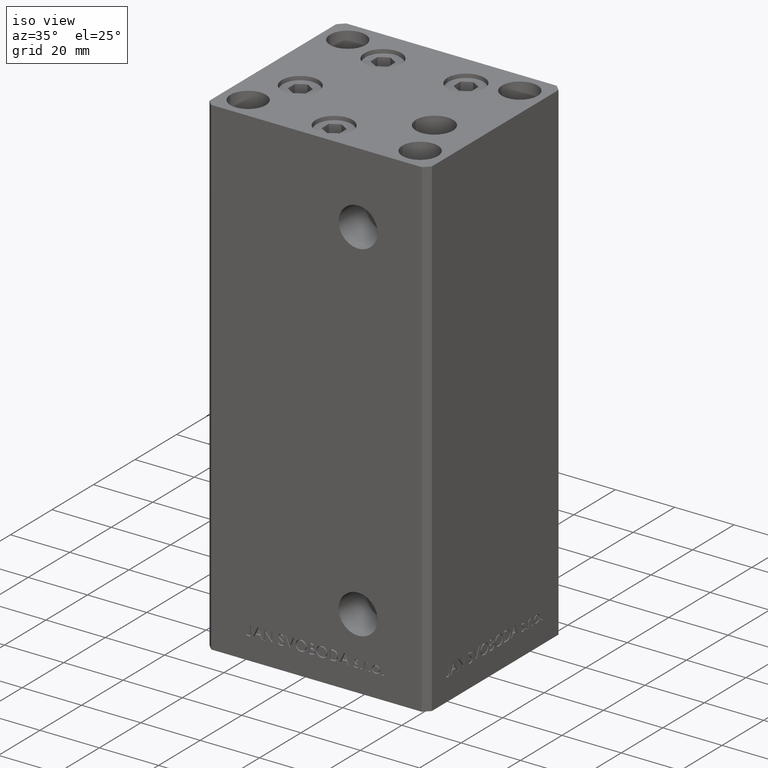
[diagram: clean part render]
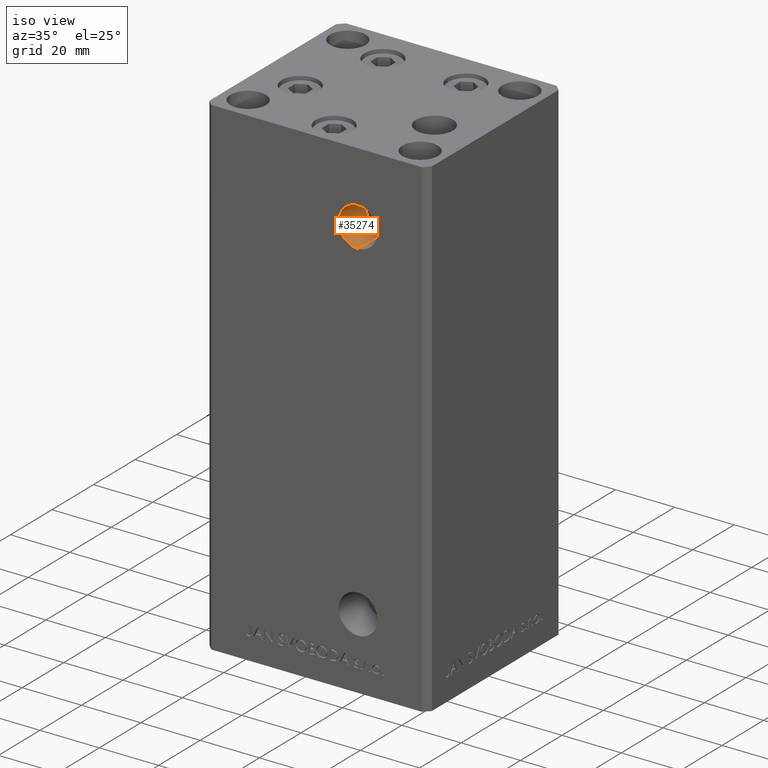
[diagram: same view with one face highlighted and labeled with its STEP entity id]
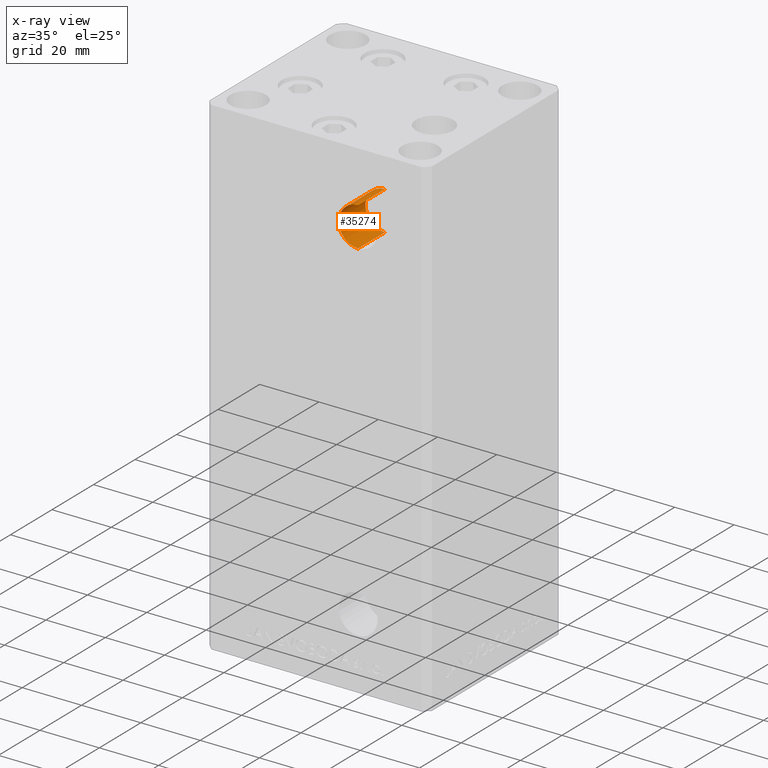
[diagram: x-ray of the same camera — body ghosted, the highlighted face saturated]
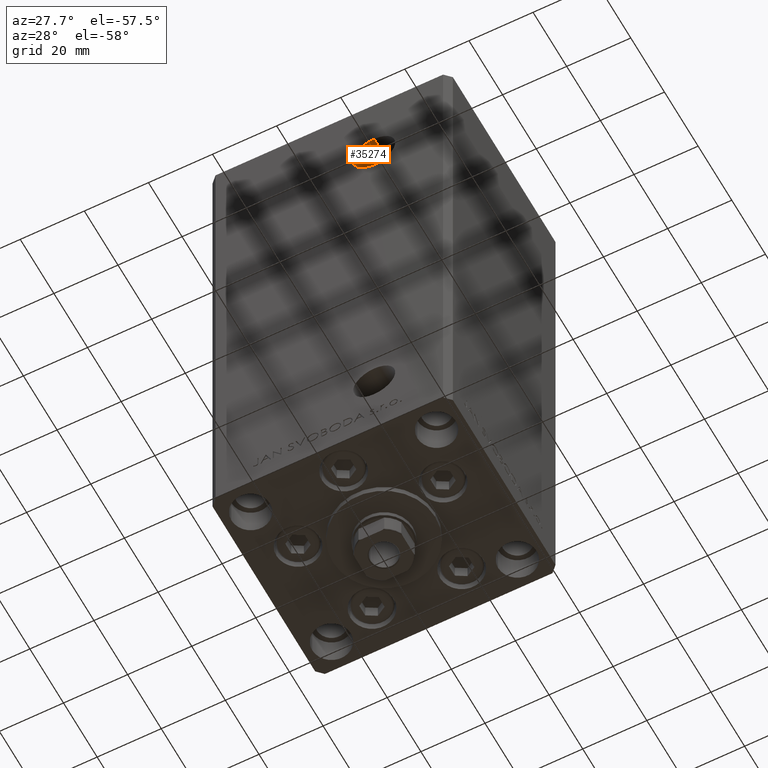
[diagram: same view with one face highlighted and labeled with its STEP entity id]
A machine part, iso view. The second image highlights one B-rep face of the part: STEP entity #35274.
The next image is the same camera in x-ray: the body ghosted, the highlighted face saturated — about 0% of this face is hidden behind the body in this view.
A second angle (auxiliary view) of the same face is appended — the face is thin or edge-on in the first view.
In plain terms, the highlighted cylindrical surface (edge-blend (fillet) strip) has radius 6.58 mm, axis along (-0, -1, -0).
Its self-contained STEP definition (entity closure, byte-faithful):
#2026 = EDGE_CURVE ( 'NONE', #20706, #39107, #20227, .T. ) ;
#2312 = VERTEX_POINT ( 'NONE', #25741 ) ;
#3520 = CARTESIAN_POINT ( 'NONE',  ( 13.99999999999999112, -19.50000000000000355, 120.4200000000000017 ) ) ;
#6493 = EDGE_CURVE ( 'NONE', #25793, #39107, #39932, .T. ) ;
#7367 = ORIENTED_EDGE ( 'NONE', *, *, #6493, .F. ) ;
#7860 = DIRECTION ( 'NONE',  ( -0.000000000000000000, 1.000000000000000000, -0.000000000000000000 ) ) ;
#9169 = DIRECTION ( 'NONE',  ( -0.000000000000000000, -1.000000000000000000, -0.000000000000000000 ) ) ;
#10187 = CARTESIAN_POINT ( 'NONE',  ( 13.99999999999999112, -19.50000000000000355, 133.5800000000000125 ) ) ;
#10472 = ORIENTED_EDGE ( 'NONE', *, *, #2026, .T. ) ;
#12263 = FACE_OUTER_BOUND ( 'NONE', #17583, .T. ) ;
#12686 = CARTESIAN_POINT ( 'NONE',  ( 13.99999999999999112, -19.50000000000000355, 133.5800000000000125 ) ) ;
#15070 = VECTOR ( 'NONE', #9169, 1000.000000000000000 ) ;
#15564 = CIRCLE ( 'NONE', #28390, 6.580000000000002736 ) ;
#16385 = DIRECTION ( 'NONE',  ( -0.000000000000000000, 1.000000000000000000, -0.000000000000000000 ) ) ;
#16939 = ORIENTED_EDGE ( 'NONE', *, *, #46546, .T. ) ;
#17583 = EDGE_LOOP ( 'NONE', ( #16939, #10472, #7367, #33072 ) ) ;
#18911 = EDGE_CURVE ( 'NONE', #2312, #25793, #42184, .T. ) ;
#19564 = DIRECTION ( 'NONE',  ( -0.000000000000000000, -1.000000000000000000, -0.000000000000000000 ) ) ;
#19812 = CYLINDRICAL_SURFACE ( 'NONE', #31472, 6.580000000000002736 ) ;
#20227 = LINE ( 'NONE', #12686, #15070 ) ;
#20706 = VERTEX_POINT ( 'NONE', #10187 ) ;
#23894 = VECTOR ( 'NONE', #30875, 1000.000000000000000 ) ;
#25741 = CARTESIAN_POINT ( 'NONE',  ( 13.99999999999999112, -19.50000000000000355, 120.4200000000000017 ) ) ;
#25793 = VERTEX_POINT ( 'NONE', #47574 ) ;
#27595 = CARTESIAN_POINT ( 'NONE',  ( 13.99999999999999112, -19.50000000000000355, 127.0000000000000000 ) ) ;
#27839 = DIRECTION ( 'NONE',  ( 0.000000000000000000, 0.000000000000000000, -1.000000000000000000 ) ) ;
#28390 = AXIS2_PLACEMENT_3D ( 'NONE', #30956, #7860, #30212 ) ;
#30212 = DIRECTION ( 'NONE',  ( 0.000000000000000000, 0.000000000000000000, -1.000000000000000000 ) ) ;
#30875 = DIRECTION ( 'NONE',  ( -0.000000000000000000, -1.000000000000000000, -0.000000000000000000 ) ) ;
#30956 = CARTESIAN_POINT ( 'NONE',  ( 13.99999999999999112, -19.50000000000000355, 127.0000000000000000 ) ) ;
#31472 = AXIS2_PLACEMENT_3D ( 'NONE', #27595, #19564, #27839 ) ;
#33072 = ORIENTED_EDGE ( 'NONE', *, *, #18911, .F. ) ;
#34720 = DIRECTION ( 'NONE',  ( 0.000000000000000000, 0.000000000000000000, -1.000000000000000000 ) ) ;
#35274 = ADVANCED_FACE ( 'NONE', ( #12263 ), #19812, .F. ) ;
#35424 = CARTESIAN_POINT ( 'NONE',  ( 13.99999999999999112, -32.50000000000000000, 133.5800000000000125 ) ) ;
#38496 = CARTESIAN_POINT ( 'NONE',  ( 13.99999999999999112, -32.50000000000000000, 127.0000000000000000 ) ) ;
#39107 = VERTEX_POINT ( 'NONE', #35424 ) ;
#39932 = CIRCLE ( 'NONE', #46376, 6.580000000000002736 ) ;
#42184 = LINE ( 'NONE', #3520, #23894 ) ;
#46376 = AXIS2_PLACEMENT_3D ( 'NONE', #38496, #16385, #34720 ) ;
#46546 = EDGE_CURVE ( 'NONE', #2312, #20706, #15564, .T. ) ;
#47574 = CARTESIAN_POINT ( 'NONE',  ( 13.99999999999999112, -32.50000000000000000, 120.4200000000000017 ) ) ;